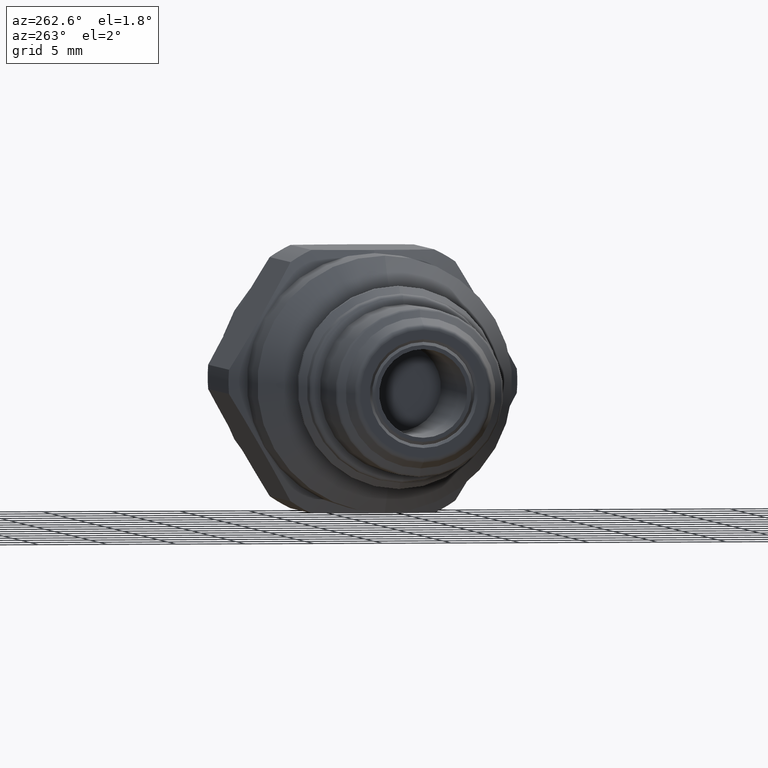
[diagram: clean part render]
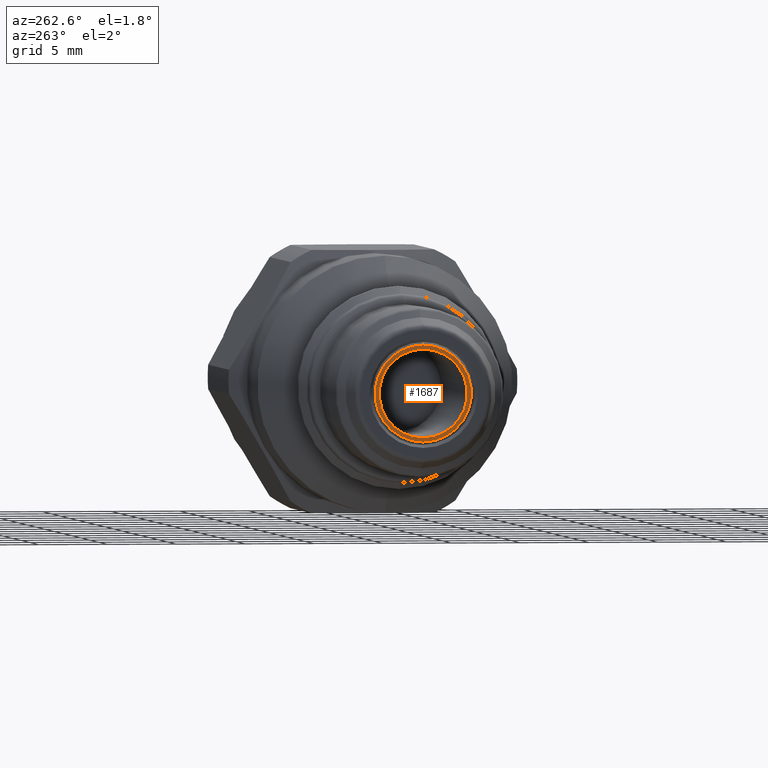
[diagram: same view with one face highlighted and labeled with its STEP entity id]
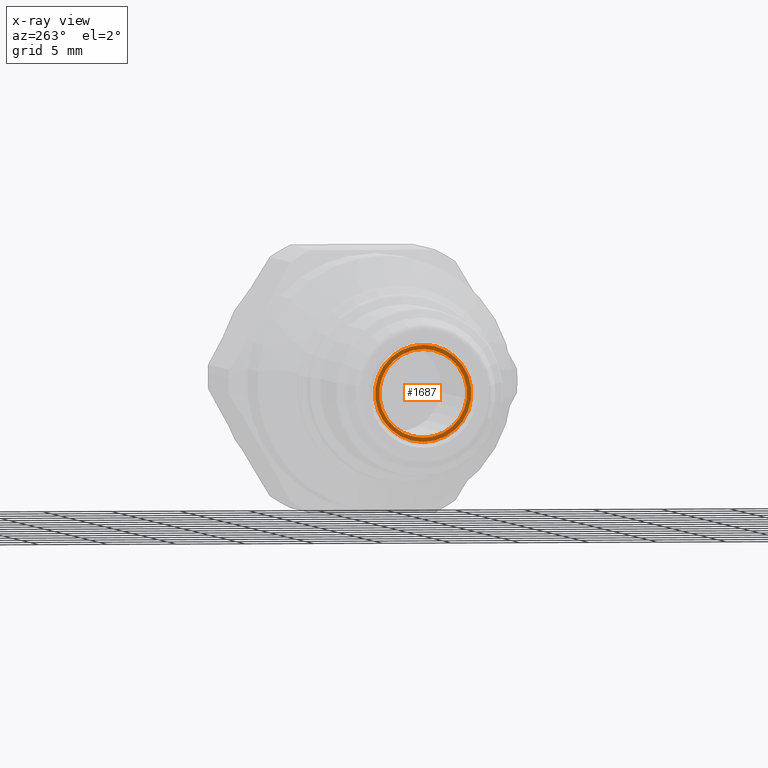
[diagram: x-ray of the same camera — body ghosted, the highlighted face saturated]
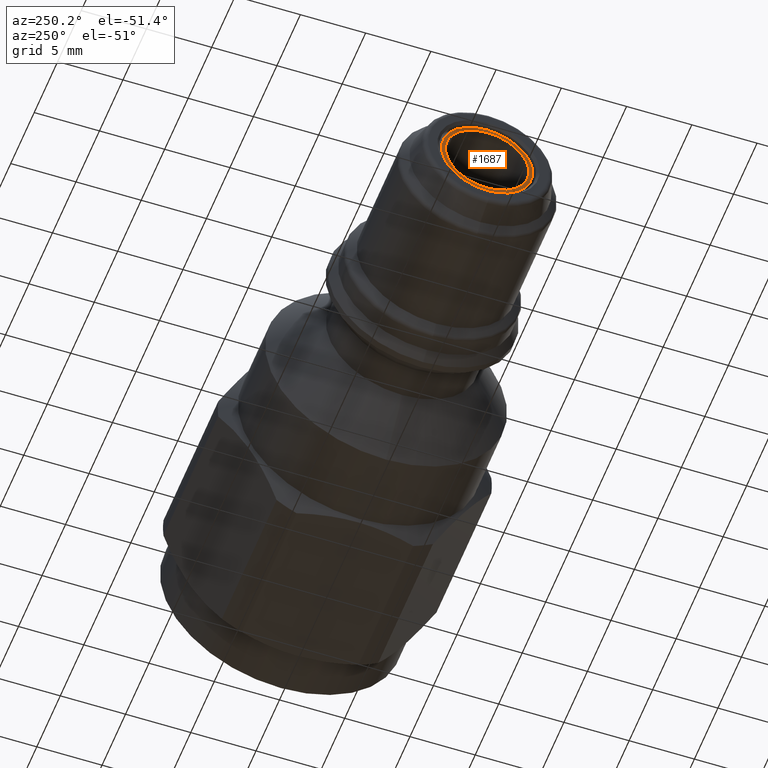
[diagram: same view with one face highlighted and labeled with its STEP entity id]
A machine part, auxiliary view. The second image highlights one B-rep face of the part: STEP entity #1687.
The next image is the same camera in x-ray: the body ghosted, the highlighted face saturated — about 0% of this face is hidden behind the body in this view.
A second angle (auxiliary view) of the same face is appended — the face is thin or edge-on in the first view.
In plain terms, the highlighted planar face has unit normal (1, 0, 0).
Its self-contained STEP definition (entity closure, byte-faithful):
#153 = AXIS2_PLACEMENT_3D ( 'NONE', #1855, #1853, #1854 ) ;
#169 = AXIS2_PLACEMENT_3D ( 'NONE', #572, #568, #567 ) ;
#173 = AXIS2_PLACEMENT_3D ( 'NONE', #607, #604, #606 ) ;
#283 = EDGE_CURVE ( 'NONE', #681, #659, #915, .T. ) ;
#297 = EDGE_CURVE ( 'NONE', #714, #704, #898, .T. ) ;
#303 = EDGE_CURVE ( 'NONE', #704, #714, #892, .T. ) ;
#320 = EDGE_CURVE ( 'NONE', #659, #681, #875, .T. ) ;
#325 = AXIS2_PLACEMENT_3D ( 'NONE', #1624, #1663, #1623 ) ;
#474 = CARTESIAN_POINT ( 'NONE',  ( -44.20000000003975800, 3.500000000032090300, 0.0000000000000000000 ) ) ;
#483 = DIRECTION ( 'NONE',  ( 0.0000000000000000000, 0.0000000000000000000, -1.000000000000000000 ) ) ;
#486 = PLANE ( 'NONE',  #641 ) ;
#493 = DIRECTION ( 'NONE',  ( 1.000000000000000000, 0.0000000000000000000, 0.0000000000000000000 ) ) ;
#567 = DIRECTION ( 'NONE',  ( 0.0000000000000000000, 0.0000000000000000000, 1.000000000000000000 ) ) ;
#568 = DIRECTION ( 'NONE',  ( -1.000000000000000000, 0.0000000000000000000, 0.0000000000000000000 ) ) ;
#572 = CARTESIAN_POINT ( 'NONE',  ( -44.20000000003975800, 0.0000000000000000000, 0.0000000000000000000 ) ) ;
#604 = DIRECTION ( 'NONE',  ( -1.000000000000000000, 0.0000000000000000000, 0.0000000000000000000 ) ) ;
#606 = DIRECTION ( 'NONE',  ( 0.0000000000000000000, 0.0000000000000000000, 1.000000000000000000 ) ) ;
#607 = CARTESIAN_POINT ( 'NONE',  ( -44.20000000003975800, 0.0000000000000000000, 0.0000000000000000000 ) ) ;
#641 = AXIS2_PLACEMENT_3D ( 'NONE', #474, #493, #483 ) ;
#659 = VERTEX_POINT ( 'NONE', #1479 ) ;
#681 = VERTEX_POINT ( 'NONE', #1458 ) ;
#704 = VERTEX_POINT ( 'NONE', #1541 ) ;
#714 = VERTEX_POINT ( 'NONE', #1593 ) ;
#750 = FACE_OUTER_BOUND ( 'NONE', #1303, .T. ) ;
#751 = FACE_BOUND ( 'NONE', #1301, .T. ) ;
#875 = CIRCLE ( 'NONE', #325, 3.500000000032090300 ) ;
#892 = CIRCLE ( 'NONE', #173, 3.200000000032065200 ) ;
#898 = CIRCLE ( 'NONE', #169, 3.200000000032065200 ) ;
#915 = CIRCLE ( 'NONE', #153, 3.500000000032090300 ) ;
#1265 = ORIENTED_EDGE ( 'NONE', *, *, #303, .F. ) ;
#1266 = ORIENTED_EDGE ( 'NONE', *, *, #297, .F. ) ;
#1267 = ORIENTED_EDGE ( 'NONE', *, *, #320, .T. ) ;
#1269 = ORIENTED_EDGE ( 'NONE', *, *, #283, .T. ) ;
#1301 = EDGE_LOOP ( 'NONE', ( #1265, #1266 ) ) ;
#1303 = EDGE_LOOP ( 'NONE', ( #1267, #1269 ) ) ;
#1458 = CARTESIAN_POINT ( 'NONE',  ( -44.20000000003975800, 4.424036561959130200E-016, 3.500000000032090300 ) ) ;
#1479 = CARTESIAN_POINT ( 'NONE',  ( -44.20000000003975800, 0.0000000000000000000, -3.500000000032090300 ) ) ;
#1541 = CARTESIAN_POINT ( 'NONE',  ( -44.20000000003975800, 0.0000000000000000000, 3.200000000032065200 ) ) ;
#1593 = CARTESIAN_POINT ( 'NONE',  ( -44.20000000003975800, 3.918869757310798500E-016, -3.200000000032065200 ) ) ;
#1623 = DIRECTION ( 'NONE',  ( 0.0000000000000000000, 0.0000000000000000000, 1.000000000000000000 ) ) ;
#1624 = CARTESIAN_POINT ( 'NONE',  ( -44.20000000003975800, 0.0000000000000000000, 0.0000000000000000000 ) ) ;
#1663 = DIRECTION ( 'NONE',  ( -1.000000000000000000, 0.0000000000000000000, 0.0000000000000000000 ) ) ;
#1687 = ADVANCED_FACE ( 'NONE', ( #751, #750 ), #486, .F. ) ;
#1853 = DIRECTION ( 'NONE',  ( -1.000000000000000000, 0.0000000000000000000, 0.0000000000000000000 ) ) ;
#1854 = DIRECTION ( 'NONE',  ( 0.0000000000000000000, 0.0000000000000000000, 1.000000000000000000 ) ) ;
#1855 = CARTESIAN_POINT ( 'NONE',  ( -44.20000000003975800, 0.0000000000000000000, 0.0000000000000000000 ) ) ;